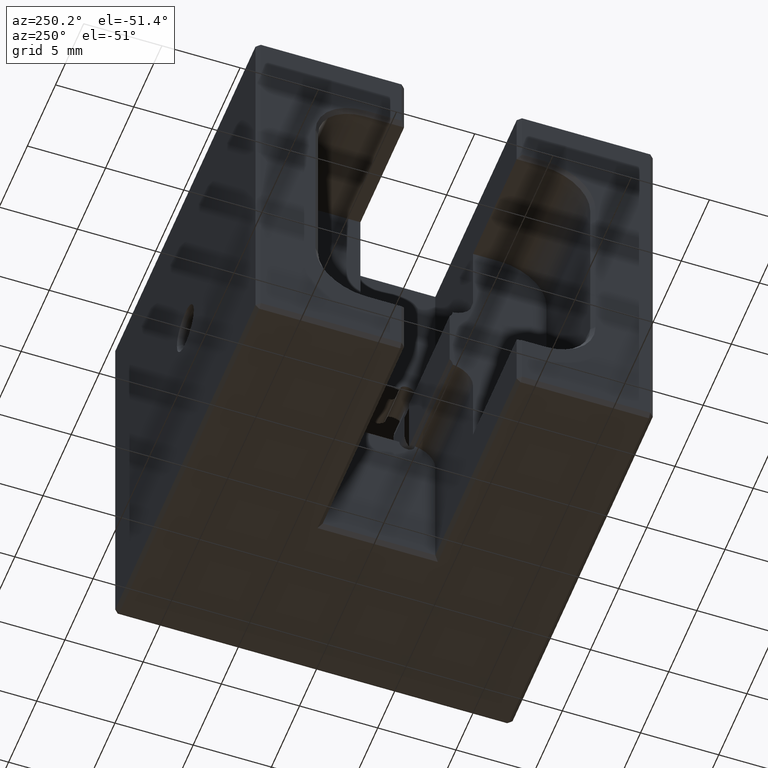
[diagram: clean part render]
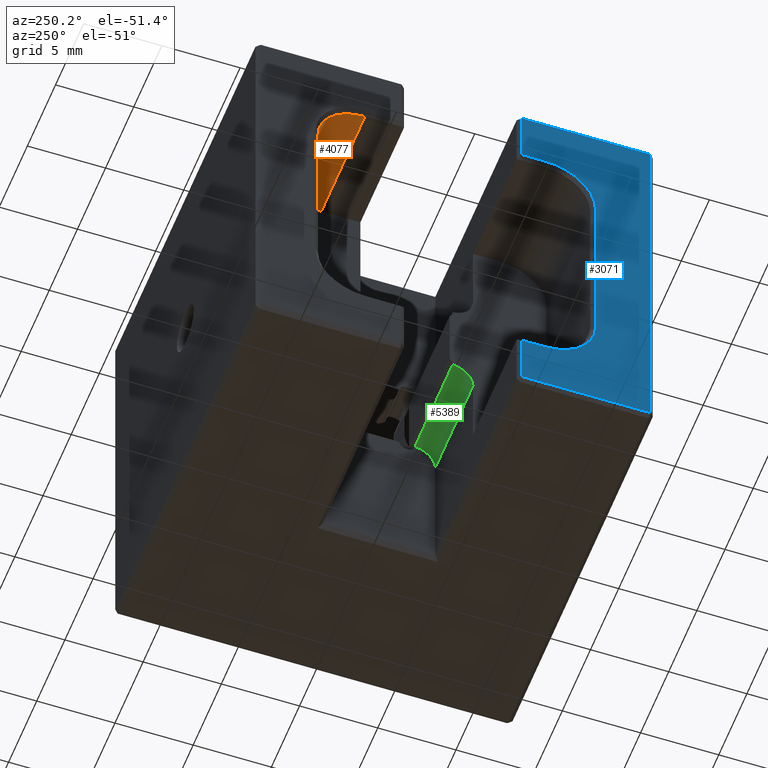
[diagram: same view with three faces highlighted in distinct colors, each labeled with its STEP entity id]
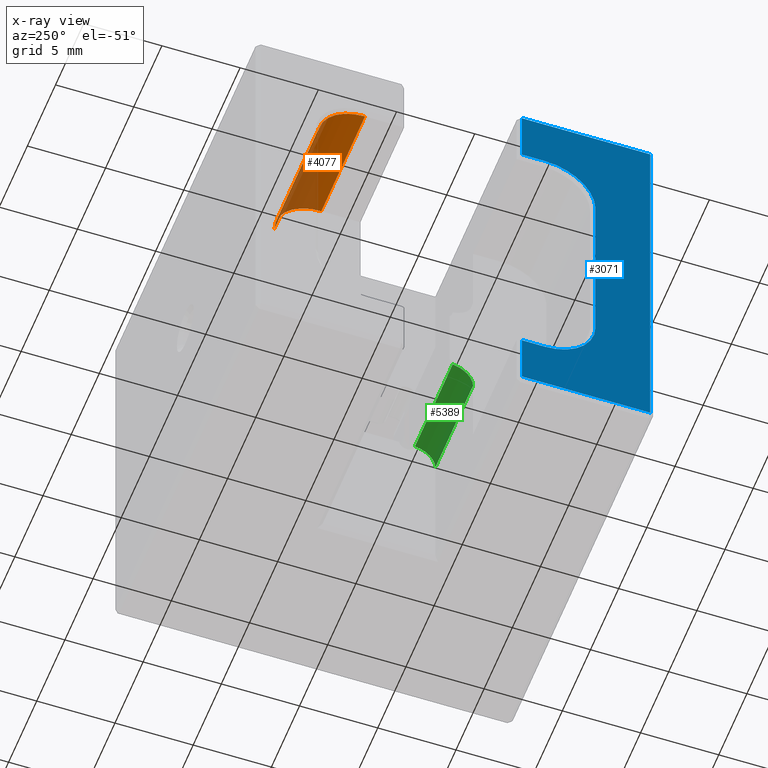
[diagram: x-ray of the same camera — body ghosted, the three highlighted faces saturated]
A machine part, auxiliary view with three faces highlighted in distinct colors.
The next image is the same camera in x-ray (body ghosted, the three faces saturated) — at least one of them is partly hidden behind the body in this view.
Their STEP definitions:

[orange] entity #4077 — the highlighted cylindrical surface (partial cylindrical patch) has radius 3 mm, axis along (1, 0, 0).
#122 = VECTOR ( 'NONE', #3537, 1000.000000000000000 ) ;
#410 = DIRECTION ( 'NONE',  ( 1.000000000000000000, 0.000000000000000000, 0.000000000000000000 ) ) ;
#517 = CIRCLE ( 'NONE', #5028, 3.000000000000000000 ) ;
#629 = DIRECTION ( 'NONE',  ( 0.000000000000000000, 0.000000000000000000, -1.000000000000000000 ) ) ;
#661 = EDGE_CURVE ( 'NONE', #5426, #6235, #6393, .T. ) ;
#691 = AXIS2_PLACEMENT_3D ( 'NONE', #2880, #410, #3884 ) ;
#702 = CARTESIAN_POINT ( 'NONE',  ( -12.45000000000001172, 5.699999999999997513, 8.699999999999997513 ) ) ;
#873 = ORIENTED_EDGE ( 'NONE', *, *, #5254, .F. ) ;
#999 = CARTESIAN_POINT ( 'NONE',  ( -4.699999999999995737, 5.699999999999997513, 5.699999999999997513 ) ) ;
#1533 = CARTESIAN_POINT ( 'NONE',  ( -4.699999999999995737, 5.699999999999997513, 8.699999999999997513 ) ) ;
#1715 = EDGE_CURVE ( 'NONE', #5426, #4127, #1904, .T. ) ;
#1812 = EDGE_LOOP ( 'NONE', ( #5167, #3429, #873, #5442 ) ) ;
#1904 = LINE ( 'NONE', #4887, #2752 ) ;
#2096 = VERTEX_POINT ( 'NONE', #3764 ) ;
#2582 = FACE_OUTER_BOUND ( 'NONE', #1812, .T. ) ;
#2752 = VECTOR ( 'NONE', #5384, 1000.000000000000000 ) ;
#2880 = CARTESIAN_POINT ( 'NONE',  ( -4.699999999999995737, 5.699999999999997513, 5.699999999999997513 ) ) ;
#2888 = AXIS2_PLACEMENT_3D ( 'NONE', #6077, #5546, #629 ) ;
#3089 = CARTESIAN_POINT ( 'NONE',  ( -12.69999999999999574, 8.699999999999997513, 5.699999999999997513 ) ) ;
#3429 = ORIENTED_EDGE ( 'NONE', *, *, #661, .T. ) ;
#3537 = DIRECTION ( 'NONE',  ( -1.000000000000000000, 0.000000000000000000, 0.000000000000000000 ) ) ;
#3764 = CARTESIAN_POINT ( 'NONE',  ( -4.699999999999995737, 8.699999999999997513, 5.699999999999997513 ) ) ;
#3884 = DIRECTION ( 'NONE',  ( 0.000000000000000000, 0.000000000000000000, -1.000000000000000000 ) ) ;
#4017 = DIRECTION ( 'NONE',  ( -1.000000000000000000, 0.000000000000000000, 0.000000000000000000 ) ) ;
#4077 = ADVANCED_FACE ( 'NONE', ( #2582 ), #5895, .F. ) ;
#4127 = VERTEX_POINT ( 'NONE', #1533 ) ;
#4757 = LINE ( 'NONE', #3089, #122 ) ;
#4887 = CARTESIAN_POINT ( 'NONE',  ( -4.699999999999995737, 5.699999999999997513, 8.699999999999997513 ) ) ;
#4950 = DIRECTION ( 'NONE',  ( 0.000000000000000000, 0.000000000000000000, 1.000000000000000000 ) ) ;
#5028 = AXIS2_PLACEMENT_3D ( 'NONE', #999, #4017, #4950 ) ;
#5105 = EDGE_CURVE ( 'NONE', #4127, #2096, #517, .T. ) ;
#5167 = ORIENTED_EDGE ( 'NONE', *, *, #1715, .F. ) ;
#5204 = CARTESIAN_POINT ( 'NONE',  ( -12.45000000000001172, 8.699999999999997513, 5.699999999999997513 ) ) ;
#5254 = EDGE_CURVE ( 'NONE', #2096, #6235, #4757, .T. ) ;
#5384 = DIRECTION ( 'NONE',  ( 1.000000000000000000, -0.000000000000000000, -0.000000000000000000 ) ) ;
#5426 = VERTEX_POINT ( 'NONE', #702 ) ;
#5442 = ORIENTED_EDGE ( 'NONE', *, *, #5105, .F. ) ;
#5546 = DIRECTION ( 'NONE',  ( -1.000000000000000000, -0.000000000000000000, -0.000000000000000000 ) ) ;
#5895 = CYLINDRICAL_SURFACE ( 'NONE', #691, 3.000000000000000000 ) ;
#6077 = CARTESIAN_POINT ( 'NONE',  ( -12.45000000000001172, 5.699999999999997513, 5.699999999999997513 ) ) ;
#6235 = VERTEX_POINT ( 'NONE', #5204 ) ;
#6393 = CIRCLE ( 'NONE', #2888, 3.000000000000000000 ) ;

[blue] entity #3071 — the highlighted planar face has unit normal (1, 0, 0).
#59 = EDGE_CURVE ( 'NONE', #4658, #2022, #4945, .T. ) ;
#143 = FACE_OUTER_BOUND ( 'NONE', #5279, .T. ) ;
#214 = CARTESIAN_POINT ( 'NONE',  ( -12.70000000000000462, 12.69999999999999929, 12.45000000000001705 ) ) ;
#409 = VERTEX_POINT ( 'NONE', #6028 ) ;
#471 = LINE ( 'NONE', #1751, #1854 ) ;
#551 = ORIENTED_EDGE ( 'NONE', *, *, #5532, .T. ) ;
#743 = LINE ( 'NONE', #2447, #2522 ) ;
#972 = LINE ( 'NONE', #5361, #5430 ) ;
#980 = DIRECTION ( 'NONE',  ( 0.000000000000000000, 1.000000000000000000, 0.000000000000000000 ) ) ;
#1032 = VERTEX_POINT ( 'NONE', #4733 ) ;
#1059 = LINE ( 'NONE', #4279, #5620 ) ;
#1158 = ORIENTED_EDGE ( 'NONE', *, *, #3093, .T. ) ;
#1368 = CARTESIAN_POINT ( 'NONE',  ( -12.70000000000000462, -5.699999999999997513, -5.699999999999998401 ) ) ;
#1714 = ORIENTED_EDGE ( 'NONE', *, *, #59, .T. ) ;
#1751 = CARTESIAN_POINT ( 'NONE',  ( -12.70000000000000462, -4.249999999999993783, -12.69999999999999218 ) ) ;
#1753 = EDGE_CURVE ( 'NONE', #5728, #4658, #3606, .T. ) ;
#1806 = ORIENTED_EDGE ( 'NONE', *, *, #3767, .T. ) ;
#1854 = VECTOR ( 'NONE', #4755, 1000.000000000000000 ) ;
#1944 = CARTESIAN_POINT ( 'NONE',  ( -12.70000000000000462, -8.949999999999988631, 5.699999999999997513 ) ) ;
#2022 = VERTEX_POINT ( 'NONE', #4663 ) ;
#2191 = CIRCLE ( 'NONE', #6086, 3.249999999999990674 ) ;
#2193 = AXIS2_PLACEMENT_3D ( 'NONE', #4778, #3330, #5218 ) ;
#2252 = CARTESIAN_POINT ( 'NONE',  ( -12.70000000000000462, -5.699999999999998401, 8.949999999999985079 ) ) ;
#2290 = DIRECTION ( 'NONE',  ( 0.000000000000000000, -1.000000000000000000, 0.000000000000000000 ) ) ;
#2301 = PLANE ( 'NONE',  #2193 ) ;
#2342 = CARTESIAN_POINT ( 'NONE',  ( -12.70000000000000462, -5.699999999999997513, -8.949999999999988631 ) ) ;
#2447 = CARTESIAN_POINT ( 'NONE',  ( -12.70000000000000462, -12.45000000000000995, -12.69999999999999574 ) ) ;
#2514 = EDGE_CURVE ( 'NONE', #2786, #3183, #6270, .T. ) ;
#2522 = VECTOR ( 'NONE', #6395, 1000.000000000000000 ) ;
#2653 = EDGE_CURVE ( 'NONE', #5752, #1032, #972, .T. ) ;
#2699 = ORIENTED_EDGE ( 'NONE', *, *, #4624, .T. ) ;
#2786 = VERTEX_POINT ( 'NONE', #6131 ) ;
#2805 = DIRECTION ( 'NONE',  ( 0.000000000000000000, 1.700709290173340903E-16, -1.000000000000000000 ) ) ;
#2857 = DIRECTION ( 'NONE',  ( 1.000000000000000000, 0.000000000000000000, 0.000000000000000000 ) ) ;
#2961 = CARTESIAN_POINT ( 'NONE',  ( -12.70000000000000462, -12.45000000000000995, 12.45000000000001705 ) ) ;
#2971 = VECTOR ( 'NONE', #5493, 1000.000000000000000 ) ;
#3071 = ADVANCED_FACE ( 'NONE', ( #143 ), #2301, .F. ) ;
#3093 = EDGE_CURVE ( 'NONE', #1032, #4100, #471, .T. ) ;
#3170 = ORIENTED_EDGE ( 'NONE', *, *, #2653, .T. ) ;
#3183 = VERTEX_POINT ( 'NONE', #3358 ) ;
#3330 = DIRECTION ( 'NONE',  ( 1.000000000000000000, 0.000000000000000000, 0.000000000000000000 ) ) ;
#3344 = CARTESIAN_POINT ( 'NONE',  ( -12.70000000000000462, -4.249999999999993783, -12.45000000000000639 ) ) ;
#3358 = CARTESIAN_POINT ( 'NONE',  ( -12.70000000000000462, -4.249999999999993783, 8.949999999999985079 ) ) ;
#3393 = DIRECTION ( 'NONE',  ( 0.000000000000000000, 0.000000000000000000, -1.000000000000000000 ) ) ;
#3494 = ORIENTED_EDGE ( 'NONE', *, *, #4417, .T. ) ;
#3518 = VERTEX_POINT ( 'NONE', #2961 ) ;
#3606 = CIRCLE ( 'NONE', #5439, 3.249999999999990674 ) ;
#3620 = LINE ( 'NONE', #4614, #5001 ) ;
#3672 = ORIENTED_EDGE ( 'NONE', *, *, #2514, .T. ) ;
#3767 = EDGE_CURVE ( 'NONE', #2022, #5752, #2191, .T. ) ;
#3852 = DIRECTION ( 'NONE',  ( 0.000000000000000000, -1.000000000000000000, 0.000000000000000000 ) ) ;
#4100 = VERTEX_POINT ( 'NONE', #3344 ) ;
#4279 = CARTESIAN_POINT ( 'NONE',  ( -12.70000000000000462, 12.69999999999999929, -12.45000000000000639 ) ) ;
#4300 = DIRECTION ( 'NONE',  ( 1.000000000000000000, 0.000000000000000000, 0.000000000000000000 ) ) ;
#4417 = EDGE_CURVE ( 'NONE', #3518, #2786, #5973, .T. ) ;
#4614 = CARTESIAN_POINT ( 'NONE',  ( -12.70000000000000462, -5.699999999999998401, 8.949999999999985079 ) ) ;
#4624 = EDGE_CURVE ( 'NONE', #409, #3518, #743, .T. ) ;
#4654 = VECTOR ( 'NONE', #5174, 1000.000000000000000 ) ;
#4658 = VERTEX_POINT ( 'NONE', #1944 ) ;
#4663 = CARTESIAN_POINT ( 'NONE',  ( -12.70000000000000462, -8.949999999999988631, -5.699999999999998401 ) ) ;
#4733 = CARTESIAN_POINT ( 'NONE',  ( -12.70000000000000462, -4.249999999999992895, -8.949999999999988631 ) ) ;
#4755 = DIRECTION ( 'NONE',  ( -0.000000000000000000, -1.700709290173340903E-16, -1.000000000000000000 ) ) ;
#4778 = CARTESIAN_POINT ( 'NONE',  ( -12.70000000000000462, 12.69999999999999929, -12.69999999999999574 ) ) ;
#4794 = ORIENTED_EDGE ( 'NONE', *, *, #1753, .T. ) ;
#4937 = EDGE_CURVE ( 'NONE', #3183, #5728, #3620, .T. ) ;
#4945 = LINE ( 'NONE', #6049, #2971 ) ;
#4962 = VECTOR ( 'NONE', #2805, 1000.000000000000000 ) ;
#5001 = VECTOR ( 'NONE', #3852, 1000.000000000000000 ) ;
#5174 = DIRECTION ( 'NONE',  ( 0.000000000000000000, 1.000000000000000000, 0.000000000000000000 ) ) ;
#5218 = DIRECTION ( 'NONE',  ( 0.000000000000000000, 0.000000000000000000, -1.000000000000000000 ) ) ;
#5224 = CARTESIAN_POINT ( 'NONE',  ( -12.70000000000000462, -5.699999999999998401, 5.699999999999997513 ) ) ;
#5279 = EDGE_LOOP ( 'NONE', ( #5444, #4794, #1714, #1806, #3170, #1158, #551, #2699, #3494, #3672 ) ) ;
#5361 = CARTESIAN_POINT ( 'NONE',  ( -12.70000000000000462, -4.000000000000000000, -8.949999999999988631 ) ) ;
#5430 = VECTOR ( 'NONE', #980, 1000.000000000000000 ) ;
#5439 = AXIS2_PLACEMENT_3D ( 'NONE', #5224, #4300, #6212 ) ;
#5444 = ORIENTED_EDGE ( 'NONE', *, *, #4937, .T. ) ;
#5493 = DIRECTION ( 'NONE',  ( 0.000000000000000000, 0.000000000000000000, -1.000000000000000000 ) ) ;
#5532 = EDGE_CURVE ( 'NONE', #4100, #409, #1059, .T. ) ;
#5620 = VECTOR ( 'NONE', #2290, 1000.000000000000000 ) ;
#5728 = VERTEX_POINT ( 'NONE', #2252 ) ;
#5752 = VERTEX_POINT ( 'NONE', #2342 ) ;
#5973 = LINE ( 'NONE', #214, #4654 ) ;
#6028 = CARTESIAN_POINT ( 'NONE',  ( -12.70000000000000462, -12.45000000000000995, -12.45000000000000639 ) ) ;
#6049 = CARTESIAN_POINT ( 'NONE',  ( -12.70000000000000462, -8.949999999999988631, -5.699999999999998401 ) ) ;
#6086 = AXIS2_PLACEMENT_3D ( 'NONE', #1368, #2857, #3393 ) ;
#6131 = CARTESIAN_POINT ( 'NONE',  ( -12.70000000000000462, -4.249999999999994671, 12.45000000000001705 ) ) ;
#6212 = DIRECTION ( 'NONE',  ( 0.000000000000000000, 0.000000000000000000, -1.000000000000000000 ) ) ;
#6237 = CARTESIAN_POINT ( 'NONE',  ( -12.70000000000000462, -4.249999999999990230, -12.69999999999999929 ) ) ;
#6270 = LINE ( 'NONE', #6237, #4962 ) ;
#6395 = DIRECTION ( 'NONE',  ( 0.000000000000000000, 0.000000000000000000, 1.000000000000000000 ) ) ;

[green] entity #5389 — the highlighted cylindrical surface (edge-blend (fillet) strip) has radius 1.5 mm, axis along (1, 0, 0).
#190 = FACE_OUTER_BOUND ( 'NONE', #4439, .T. ) ;
#248 = DIRECTION ( 'NONE',  ( 0.000000000000000000, 0.000000000000000000, -1.000000000000000000 ) ) ;
#589 = AXIS2_PLACEMENT_3D ( 'NONE', #2636, #673, #5613 ) ;
#673 = DIRECTION ( 'NONE',  ( -1.000000000000000000, -2.602085213965210642E-16, -0.000000000000000000 ) ) ;
#732 = CARTESIAN_POINT ( 'NONE',  ( 2.000000000000001776, -4.000000000000000000, -4.000000000000001776 ) ) ;
#913 = AXIS2_PLACEMENT_3D ( 'NONE', #4631, #2684, #248 ) ;
#1029 = DIRECTION ( 'NONE',  ( 0.000000000000000000, 0.000000000000000000, 1.000000000000000000 ) ) ;
#1190 = DIRECTION ( 'NONE',  ( 1.000000000000000000, -0.000000000000000000, -0.000000000000000000 ) ) ;
#1371 = CARTESIAN_POINT ( 'NONE',  ( 2.000000000000001776, -2.699821235576979284, -2.513369086217939419 ) ) ;
#1432 = VERTEX_POINT ( 'NONE', #3628 ) ;
#1450 = EDGE_CURVE ( 'NONE', #1432, #2717, #4411, .T. ) ;
#1483 = EDGE_CURVE ( 'NONE', #2994, #1432, #6392, .T. ) ;
#1591 = EDGE_CURVE ( 'NONE', #4554, #2717, #3144, .T. ) ;
#1676 = VECTOR ( 'NONE', #1190, 1000.000000000000000 ) ;
#1824 = CARTESIAN_POINT ( 'NONE',  ( -4.699999999999997513, -2.699821235576979728, -2.513369086217939419 ) ) ;
#2067 = DIRECTION ( 'NONE',  ( 1.000000000000000000, 0.000000000000000000, 0.000000000000000000 ) ) ;
#2452 = DIRECTION ( 'NONE',  ( 1.000000000000000000, -0.000000000000000000, -0.000000000000000000 ) ) ;
#2619 = CARTESIAN_POINT ( 'NONE',  ( -3.469446951953614189E-15, -2.699821235576979728, -2.513369086217939419 ) ) ;
#2636 = CARTESIAN_POINT ( 'NONE',  ( 2.000000000000001776, -2.500000000000000444, -4.000000000000001776 ) ) ;
#2684 = DIRECTION ( 'NONE',  ( 1.000000000000000000, 0.000000000000000000, 0.000000000000000000 ) ) ;
#2717 = VERTEX_POINT ( 'NONE', #1371 ) ;
#2994 = VERTEX_POINT ( 'NONE', #3350 ) ;
#3043 = CIRCLE ( 'NONE', #3799, 1.500000000000000000 ) ;
#3062 = ORIENTED_EDGE ( 'NONE', *, *, #4162, .F. ) ;
#3144 = LINE ( 'NONE', #2619, #3457 ) ;
#3350 = CARTESIAN_POINT ( 'NONE',  ( -4.699999999999997513, -4.000000000000000000, -4.000000000000001776 ) ) ;
#3457 = VECTOR ( 'NONE', #2067, 1000.000000000000000 ) ;
#3628 = CARTESIAN_POINT ( 'NONE',  ( 2.000000000000001776, -4.000000000000000000, -4.000000000000001776 ) ) ;
#3799 = AXIS2_PLACEMENT_3D ( 'NONE', #5398, #2452, #1029 ) ;
#4162 = EDGE_CURVE ( 'NONE', #4554, #2994, #3043, .T. ) ;
#4411 = CIRCLE ( 'NONE', #589, 1.500000000000000000 ) ;
#4439 = EDGE_LOOP ( 'NONE', ( #3062, #4525, #5007, #5985 ) ) ;
#4525 = ORIENTED_EDGE ( 'NONE', *, *, #1591, .T. ) ;
#4554 = VERTEX_POINT ( 'NONE', #1824 ) ;
#4631 = CARTESIAN_POINT ( 'NONE',  ( 15.39689885204967190, -2.500000000000000444, -4.000000000000001776 ) ) ;
#5007 = ORIENTED_EDGE ( 'NONE', *, *, #1450, .F. ) ;
#5389 = ADVANCED_FACE ( 'NONE', ( #190 ), #5686, .F. ) ;
#5398 = CARTESIAN_POINT ( 'NONE',  ( -4.699999999999997513, -2.500000000000000444, -4.000000000000001776 ) ) ;
#5613 = DIRECTION ( 'NONE',  ( -2.891205793294678326E-16, 1.000000000000000000, -1.156482317317871331E-15 ) ) ;
#5686 = CYLINDRICAL_SURFACE ( 'NONE', #913, 1.499999999999999556 ) ;
#5985 = ORIENTED_EDGE ( 'NONE', *, *, #1483, .F. ) ;
#6392 = LINE ( 'NONE', #732, #1676 ) ;